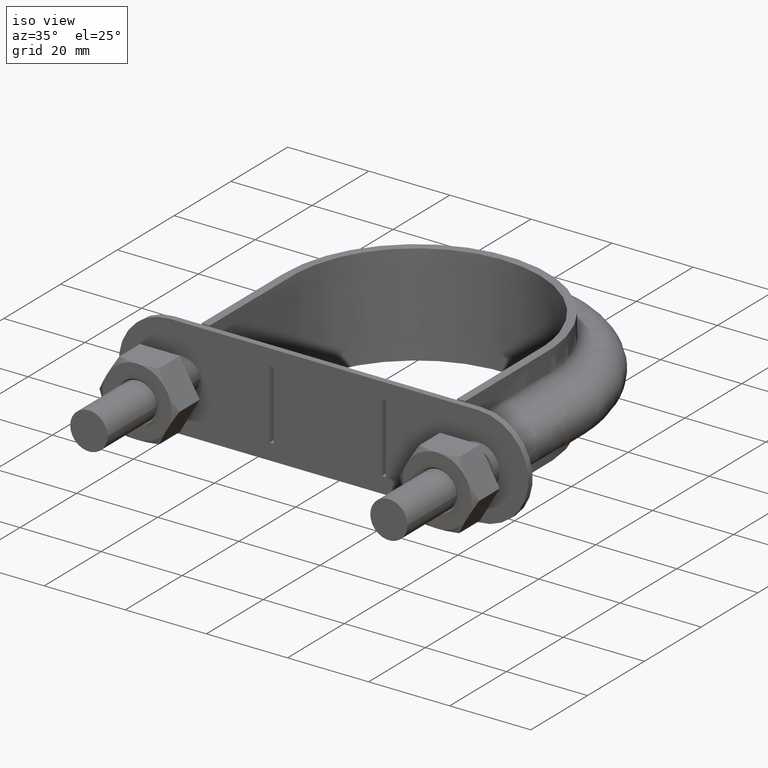
[diagram: clean part render]
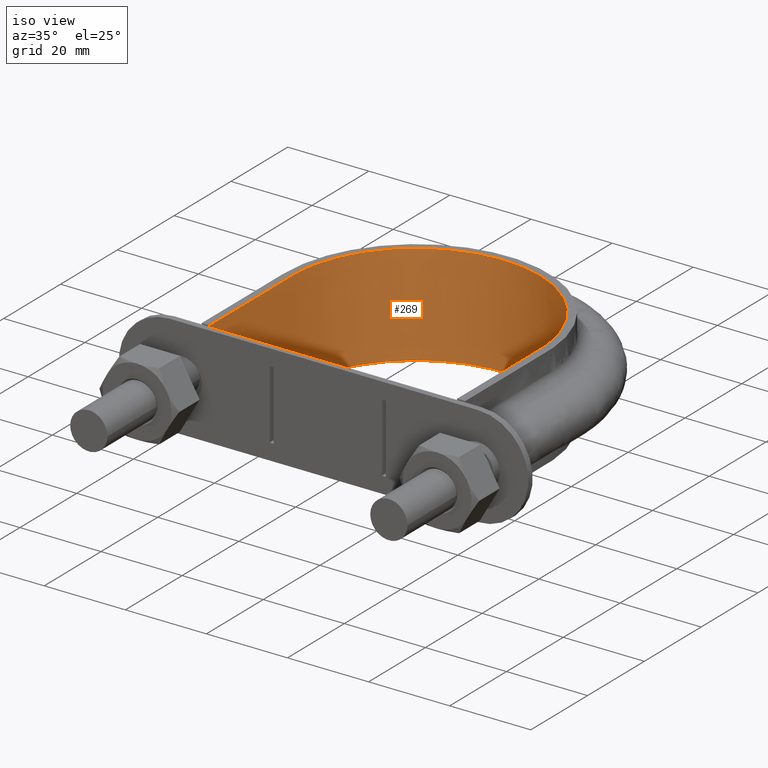
[diagram: same view with one face highlighted and labeled with its STEP entity id]
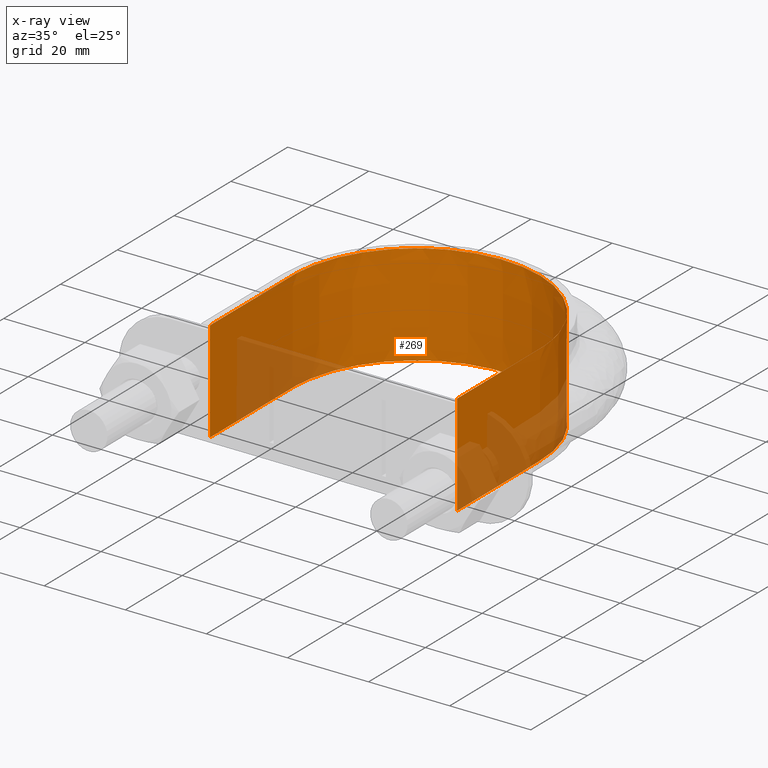
[diagram: x-ray of the same camera — body ghosted, the highlighted face saturated]
A machine part, iso view. The second image highlights one B-rep face of the part: STEP entity #269.
The next image is the same camera in x-ray: the body ghosted, the highlighted face saturated — about 21% of this face is hidden behind the body in this view.
In plain terms, the highlighted face is a SurfaceOfExtrusion surface.
Its self-contained STEP definition (entity closure, byte-faithful):
#269 = ADVANCED_FACE( '', ( #384 ), #385, .T. );
#384 = FACE_OUTER_BOUND( '', #1163, .T. );
#385 = SURFACE_OF_LINEAR_EXTRUSION( '', #1164, #1165 );
#1163 = EDGE_LOOP( '', ( #1722, #1723, #1724, #1725 ) );
#1164 = B_SPLINE_CURVE_WITH_KNOTS( '', 3, ( #1726, #1727, #1728, #1729, #1730, #1731, #1732, #1733, #1734, #1735, #1736, #1737, #1738, #1739, #1740, #1741, #1742 ), .UNSPECIFIED., .F., .F., ( 4, 3, 1, 1, 1, 1, 1, 1, 1, 3, 4 ), ( -7.88217522658610, -7.00000000000000, -6.50000000000000, -6.00000000000000, -5.00000000000000, -4.00000000000000, -3.00000000000000, -2.00000000000000, -1.50000000000000, -1.00000000000000, -0.117824773413899 ), .UNSPECIFIED. );
#1165 = VECTOR( '', #1743, 1000.00000000000 );
#1722 = ORIENTED_EDGE( '', *, *, #2525, .T. );
#1723 = ORIENTED_EDGE( '', *, *, #2518, .F. );
#1724 = ORIENTED_EDGE( '', *, *, #2526, .F. );
#1725 = ORIENTED_EDGE( '', *, *, #2527, .T. );
#1726 = CARTESIAN_POINT( '', ( 30.5000000000000, 33.3000000000001, 12.5000100000910 ) );
#1727 = CARTESIAN_POINT( '', ( 30.5000000000000, 43.0333333333334, 12.5000100000910 ) );
#1728 = CARTESIAN_POINT( '', ( 30.5000000000000, 52.7666666666667, 12.5000100000910 ) );
#1729 = CARTESIAN_POINT( '', ( 30.5000000000000, 62.5000000000000, 12.5000100000910 ) );
#1730 = CARTESIAN_POINT( '', ( 30.5000000000000, 65.1469095748589, 12.5000100000910 ) );
#1731 = CARTESIAN_POINT( '', ( 29.7847488998591, 70.4869374410593, 12.5000100000910 ) );
#1732 = CARTESIAN_POINT( '', ( 25.7022707691493, 80.4072941519287, 12.5000100000910 ) );
#1733 = CARTESIAN_POINT( '', ( 15.9624408097424, 90.1496654273448, 12.5000100000910 ) );
#1734 = CARTESIAN_POINT( '', ( 2.19717068378186E-014, 94.4251672863276, 12.5000100000910 ) );
#1735 = CARTESIAN_POINT( '', ( -15.9624408097423, 90.1496654273448, 12.5000100000910 ) );
#1736 = CARTESIAN_POINT( '', ( -25.7022707691492, 80.4072941519287, 12.5000100000910 ) );
#1737 = CARTESIAN_POINT( '', ( -29.7847488998590, 70.4869374410593, 12.5000100000910 ) );
#1738 = CARTESIAN_POINT( '', ( -30.5000000000000, 65.1469095748589, 12.5000100000910 ) );
#1739 = CARTESIAN_POINT( '', ( -30.5000000000000, 62.5000000000000, 12.5000100000910 ) );
#1740 = CARTESIAN_POINT( '', ( -30.5000000000000, 52.7666666666667, 12.5000100000910 ) );
#1741 = CARTESIAN_POINT( '', ( -30.5000000000000, 43.0333333333334, 12.5000100000910 ) );
#1742 = CARTESIAN_POINT( '', ( -30.5000000000000, 33.3000000000001, 12.5000100000910 ) );
#1743 = DIRECTION( '', ( 0.000000000000000, 0.000000000000000, -1.00000000000000 ) );
#2518 = EDGE_CURVE( '', #2751, #2754, #2755, .T. );
#2525 = EDGE_CURVE( '', #2766, #2754, #2767, .F. );
#2526 = EDGE_CURVE( '', #2768, #2751, #2769, .T. );
#2527 = EDGE_CURVE( '', #2768, #2766, #2770, .T. );
#2751 = VERTEX_POINT( '', #3139 );
#2754 = VERTEX_POINT( '', #3143 );
#2755 = LINE( '', #3144, #3145 );
#2766 = VERTEX_POINT( '', #3258 );
#2767 = B_SPLINE_CURVE_WITH_KNOTS( '', 3, ( #3259, #3260, #3261, #3262, #3263, #3264, #3265, #3266, #3267, #3268, #3269, #3270, #3271, #3272, #3273, #3274, #3275 ), .UNSPECIFIED., .F., .F., ( 4, 3, 1, 1, 1, 1, 1, 1, 1, 3, 4 ), ( -7.88217522658610, -7.00000000000000, -6.50000000000000, -6.00000000000000, -5.00000000000000, -4.00000000000000, -3.00000000000000, -2.00000000000000, -1.50000000000000, -1.00000000000000, -0.117824773413899 ), .UNSPECIFIED. );
#2768 = VERTEX_POINT( '', #3276 );
#2769 = B_SPLINE_CURVE_WITH_KNOTS( '', 3, ( #3277, #3278, #3279, #3280, #3281, #3282, #3283, #3284, #3285, #3286, #3287, #3288, #3289, #3290, #3291, #3292, #3293, #3294, #3295, #3296, #3297, #3298, #3299, #3300, #3301, #3302, #3303, #3304, #3305, #3306, #3307, #3308, #3309, #3310, #3311, #3312, #3313, #3314, #3315, #3316, #3317, #3318, #3319, #3320, #3321, #3322, #3323, #3324, #3325, #3326, #3327, #3328, #3329, #3330, #3331, #3332, #3333, #3334, #3335, #3336, #3337, #3338, #3339, #3340, #3341, #3342, #3343, #3344, #3345, #3346, #3347, #3348, #3349, #3350 ), .UNSPECIFIED., .F., .F., ( 4, 1, 2, 2, 2, 2, 2, 2, 2, 2, 2, 2, 2, 2, 2, 2, 2, 2, 2, 2, 2, 2, 2, 2, 2, 2, 2, 2, 2, 2, 2, 2, 2, 2, 2, 2, 1, 4 ), ( 6.93889390390723E-018, 0.0192554222640509, 0.0288831333960763, 0.0300865972875795, 0.0312900611790827, 0.0336969889620890, 0.0385108445281016, 0.0433247000941141, 0.0445281639856173, 0.0457316278771204, 0.0481385556601266, 0.0529524112261390, 0.0553593390091452, 0.0577662667921514, 0.0625801223581638, 0.0649870501411701, 0.0673939779241763, 0.0722078334901887, 0.0746147612731950, 0.0770216890562012, 0.0818355446222136, 0.0842424724052199, 0.0866494001882261, 0.0914632557542386, 0.0938701835372448, 0.0962771113202510, 0.101090966886263, 0.103497894669270, 0.105904822452276, 0.110718678018288, 0.115532533584301, 0.117939461367307, 0.120346389150313, 0.122753316933320, 0.123956780824823, 0.125160244716326, 0.134787955848351, 0.154043378112401 ), .UNSPECIFIED. );
#2770 = LINE( '', #3351, #3352 );
#3139 = CARTESIAN_POINT( '', ( 30.5000000000000, 33.3000000000001, 12.5000000000000 ) );
#3143 = CARTESIAN_POINT( '', ( 30.5000000000000, 33.3000000000001, -12.5000000000000 ) );
#3144 = CARTESIAN_POINT( '', ( 30.5000000000000, 33.3000000000001, 12.5000100000910 ) );
#3145 = VECTOR( '', #4001, 1000.00000000000 );
#3258 = CARTESIAN_POINT( '', ( -30.5000000000000, 33.3000000000001, -12.5000000000000 ) );
#3259 = CARTESIAN_POINT( '', ( 30.5000000000000, 33.3000000000001, -12.5000000000000 ) );
#3260 = CARTESIAN_POINT( '', ( 30.5000000000000, 43.0333333333334, -12.5000000000000 ) );
#3261 = CARTESIAN_POINT( '', ( 30.5000000000000, 52.7666666666667, -12.5000000000000 ) );
#3262 = CARTESIAN_POINT( '', ( 30.5000000000000, 62.5000000000000, -12.5000000000000 ) );
#3263 = CARTESIAN_POINT( '', ( 30.5000000000000, 65.1469095748589, -12.5000000000000 ) );
#3264 = CARTESIAN_POINT( '', ( 29.7847488998591, 70.4869374410593, -12.5000000000000 ) );
#3265 = CARTESIAN_POINT( '', ( 25.7022707691493, 80.4072941519287, -12.5000000000000 ) );
#3266 = CARTESIAN_POINT( '', ( 15.9624408097424, 90.1496654273448, -12.5000000000000 ) );
#3267 = CARTESIAN_POINT( '', ( 2.19717068378186E-014, 94.4251672863276, -12.5000000000000 ) );
#3268 = CARTESIAN_POINT( '', ( -15.9624408097423, 90.1496654273448, -12.5000000000000 ) );
#3269 = CARTESIAN_POINT( '', ( -25.7022707691492, 80.4072941519287, -12.5000000000000 ) );
#3270 = CARTESIAN_POINT( '', ( -29.7847488998590, 70.4869374410593, -12.5000000000000 ) );
#3271 = CARTESIAN_POINT( '', ( -30.5000000000000, 65.1469095748589, -12.5000000000000 ) );
#3272 = CARTESIAN_POINT( '', ( -30.5000000000000, 62.5000000000000, -12.5000000000000 ) );
#3273 = CARTESIAN_POINT( '', ( -30.5000000000000, 52.7666666666667, -12.5000000000000 ) );
#3274 = CARTESIAN_POINT( '', ( -30.5000000000000, 43.0333333333334, -12.5000000000000 ) );
#3275 = CARTESIAN_POINT( '', ( -30.5000000000000, 33.3000000000001, -12.5000000000000 ) );
#3276 = CARTESIAN_POINT( '', ( -30.5000000000000, 33.3000000000001, 12.5000000000000 ) );
#3277 = CARTESIAN_POINT( '', ( -30.5000000000000, 33.3000000000001, 12.5000000000000 ) );
#3278 = CARTESIAN_POINT( '', ( -30.5000000000000, 39.7187970838913, 12.5000000000000 ) );
#3279 = CARTESIAN_POINT( '', ( -30.5000000000000, 49.3469927097280, 12.5000000000000 ) );
#3280 = CARTESIAN_POINT( '', ( -30.5000000000000, 58.9751883355648, 12.5000000000000 ) );
#3281 = CARTESIAN_POINT( '', ( -30.5000000000000, 62.5857616952535, 12.5000000000000 ) );
#3282 = CARTESIAN_POINT( '', ( -30.4986844541323, 62.9869233149687, 12.5000000000000 ) );
#3283 = CARTESIAN_POINT( '', ( -30.4745981741132, 63.7890313082534, 12.5000000000000 ) );
#3284 = CARTESIAN_POINT( '', ( -30.4544492509140, 64.1900039847711, 12.5000000000000 ) );
#3285 = CARTESIAN_POINT( '', ( -30.3699321862256, 65.3926805324889, 12.5000000000000 ) );
#3286 = CARTESIAN_POINT( '', ( -30.2815513452004, 66.1941969152071, 12.5000000000000 ) );
#3287 = CARTESIAN_POINT( '', ( -29.9199873207873, 68.5974575716379, 12.5000000000000 ) );
#3288 = CARTESIAN_POINT( '', ( -29.5571198360746, 70.1597878617218, 12.5000000000000 ) );
#3289 = CARTESIAN_POINT( '', ( -28.5972722047830, 73.2078805901147, 12.5000000000000 ) );
#3290 = CARTESIAN_POINT( '', ( -28.0002144656636, 74.6936176513507, 12.5000000000000 ) );
#3291 = CARTESIAN_POINT( '', ( -27.0992764629768, 76.5002210087549, 12.5000000000000 ) );
#3292 = CARTESIAN_POINT( '', ( -26.9108830168221, 76.8597048381307, 12.5000000000000 ) );
#3293 = CARTESIAN_POINT( '', ( -26.5213882779157, 77.5675877861410, 12.5000000000000 ) );
#3294 = CARTESIAN_POINT( '', ( -26.3200606712639, 77.9164743968340, 12.5000000000000 ) );
#3295 = CARTESIAN_POINT( '', ( -25.6966622493176, 78.9482193844739, 12.5000000000000 ) );
#3296 = CARTESIAN_POINT( '', ( -25.2552822010554, 79.6162446284547, 12.5000000000000 ) );
#3297 = CARTESIAN_POINT( '', ( -23.8563980365694, 81.5629028552853, 12.5000000000000 ) );
#3298 = CARTESIAN_POINT( '', ( -22.8247599514251, 82.7845869670873, 12.5000000000000 ) );
#3299 = CARTESIAN_POINT( '', ( -21.1277356912024, 84.5022173661421, 12.5000000000000 ) );
#3300 = CARTESIAN_POINT( '', ( -20.5344294178502, 85.0574803638209, 12.5000000000000 ) );
#3301 = CARTESIAN_POINT( '', ( -19.3154400053686, 86.1114828484784, 12.5000000000000 ) );
#3302 = CARTESIAN_POINT( '', ( -18.6885192790513, 86.6118398404760, 12.5000000000000 ) );
#3303 = CARTESIAN_POINT( '', ( -16.7561230155805, 88.0339626993705, 12.5000000000000 ) );
#3304 = CARTESIAN_POINT( '', ( -15.3990725127795, 88.8768708414684, 12.5000000000000 ) );
#3305 = CARTESIAN_POINT( '', ( -13.2570671195093, 89.9785029571193, 12.5000000000000 ) );
#3306 = CARTESIAN_POINT( '', ( -12.5228230069799, 90.3198140177067, 12.5000000000000 ) );
#3307 = CARTESIAN_POINT( '', ( -11.0306240768061, 90.9424124997162, 12.5000000000000 ) );
#3308 = CARTESIAN_POINT( '', ( -10.2767436568868, 91.2222749932989, 12.5000000000000 ) );
#3309 = CARTESIAN_POINT( '', ( -7.99256638845177, 91.9708121045315, 12.5000000000000 ) );
#3310 = CARTESIAN_POINT( '', ( -6.43991564048141, 92.3491721134753, 12.5000000000000 ) );
#3311 = CARTESIAN_POINT( '', ( -4.06589188416638, 92.7347099004530, 12.5000000000000 ) );
#3312 = CARTESIAN_POINT( '', ( -3.26699737472996, 92.8327056960467, 12.5000000000000 ) );
#3313 = CARTESIAN_POINT( '', ( -1.65347310558429, 92.9651234586872, 12.5000000000000 ) );
#3314 = CARTESIAN_POINT( '', ( -0.846703494355858, 92.9987684510461, 12.5000000000000 ) );
#3315 = CARTESIAN_POINT( '', ( 1.55984817231904, 93.0023633373096, 12.5000000000000 ) );
#3316 = CARTESIAN_POINT( '', ( 3.15187678310362, 92.8761831280017, 12.5000000000000 ) );
#3317 = CARTESIAN_POINT( '', ( 5.52210746155231, 92.5013054281571, 12.5000000000000 ) );
#3318 = CARTESIAN_POINT( '', ( 6.30919715953031, 92.3452189758530, 12.5000000000000 ) );
#3319 = CARTESIAN_POINT( '', ( 7.87729381106977, 91.9696625532737, 12.5000000000000 ) );
#3320 = CARTESIAN_POINT( '', ( 8.65917048563704, 91.7495752421806, 12.5000000000000 ) );
#3321 = CARTESIAN_POINT( '', ( 10.9545464152786, 91.0052598400295, 12.5000000000000 ) );
#3322 = CARTESIAN_POINT( '', ( 12.4320231471580, 90.3948413907233, 12.5000000000000 ) );
#3323 = CARTESIAN_POINT( '', ( 14.5688395440171, 89.3073866714069, 12.5000000000000 ) );
#3324 = CARTESIAN_POINT( '', ( 15.2677563263256, 88.9159993988254, 12.5000000000000 ) );
#3325 = CARTESIAN_POINT( '', ( 16.6381409078519, 88.0738223999002, 12.5000000000000 ) );
#3326 = CARTESIAN_POINT( '', ( 17.3125759005459, 87.6209647757862, 12.5000000000000 ) );
#3327 = CARTESIAN_POINT( '', ( 19.2664798661707, 86.1928548114040, 12.5000000000000 ) );
#3328 = CARTESIAN_POINT( '', ( 20.4798446876837, 85.1486677122861, 12.5000000000000 ) );
#3329 = CARTESIAN_POINT( '', ( 22.1715309172384, 83.4498892270245, 12.5000000000000 ) );
#3330 = CARTESIAN_POINT( '', ( 22.7138929749290, 82.8614024003069, 12.5000000000000 ) );
#3331 = CARTESIAN_POINT( '', ( 23.7548102890671, 81.6392101347571, 12.5000000000000 ) );
#3332 = CARTESIAN_POINT( '', ( 24.2544864579075, 81.0039525206843, 12.5000000000000 ) );
#3333 = CARTESIAN_POINT( '', ( 25.6776288297831, 79.0375811703479, 12.5000000000000 ) );
#3334 = CARTESIAN_POINT( '', ( 26.5096219006963, 77.6683929281867, 12.5000000000000 ) );
#3335 = CARTESIAN_POINT( '', ( 27.9456565910457, 74.8162559376611, 12.5000000000000 ) );
#3336 = CARTESIAN_POINT( '', ( 28.5509590265555, 73.3339364069385, 12.5000000000000 ) );
#3337 = CARTESIAN_POINT( '', ( 29.2876344042200, 71.0249796848164, 12.5000000000000 ) );
#3338 = CARTESIAN_POINT( '', ( 29.5032356740682, 70.2439773078623, 12.5000000000000 ) );
#3339 = CARTESIAN_POINT( '', ( 29.8703294719088, 68.6797381224588, 12.5000000000000 ) );
#3340 = CARTESIAN_POINT( '', ( 30.0228181117525, 67.8935874420541, 12.5000000000000 ) );
#3341 = CARTESIAN_POINT( '', ( 30.2663038414340, 66.3133050211837, 12.5000000000000 ) );
#3342 = CARTESIAN_POINT( '', ( 30.3573018810971, 65.5191734039972, 12.5000000000000 ) );
#3343 = CARTESIAN_POINT( '', ( 30.4466313783280, 64.3218540452475, 12.5000000000000 ) );
#3344 = CARTESIAN_POINT( '', ( 30.4685308150340, 63.9217252192101, 12.5000000000000 ) );
#3345 = CARTESIAN_POINT( '', ( 30.4961990804467, 63.1193739566922, 12.5000000000000 ) );
#3346 = CARTESIAN_POINT( '', ( 30.5000000000000, 62.7168961029853, 12.5000000000000 ) );
#3347 = CARTESIAN_POINT( '', ( 30.5000000000000, 59.0901554875487, 12.5000000000000 ) );
#3348 = CARTESIAN_POINT( '', ( 30.5000000000000, 49.4188471797180, 12.5000000000000 ) );
#3349 = CARTESIAN_POINT( '', ( 30.5000000000000, 39.7475388718873, 12.5000000000000 ) );
#3350 = CARTESIAN_POINT( '', ( 30.5000000000000, 33.3000000000001, 12.5000000000000 ) );
#3351 = CARTESIAN_POINT( '', ( -30.5000000000000, 33.3000000000001, 12.5000100000910 ) );
#3352 = VECTOR( '', #4003, 1000.00000000000 );
#4001 = DIRECTION( '', ( 0.000000000000000, 0.000000000000000, -1.00000000000000 ) );
#4003 = DIRECTION( '', ( 0.000000000000000, 0.000000000000000, -1.00000000000000 ) );